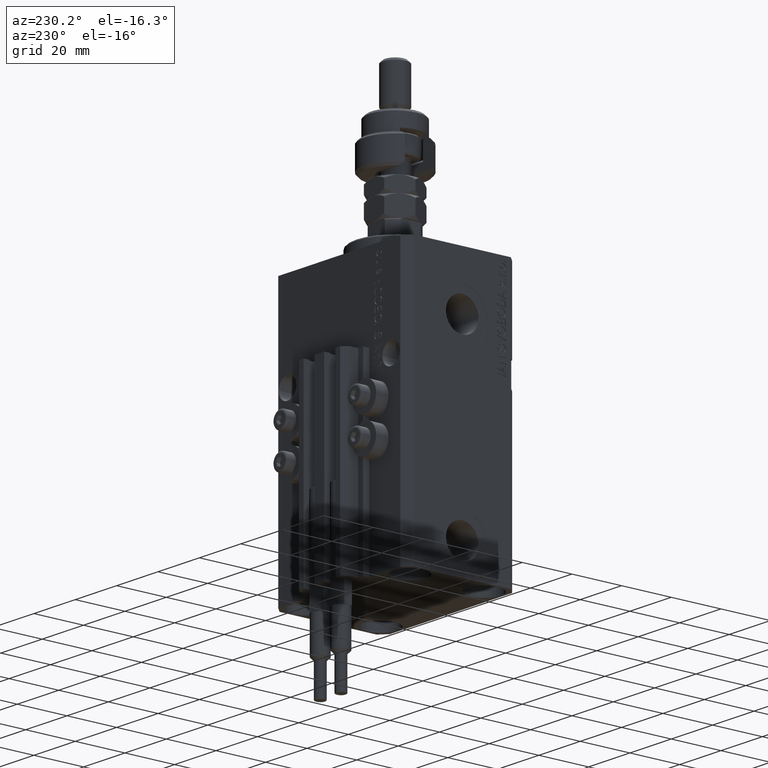
[diagram: clean part render]
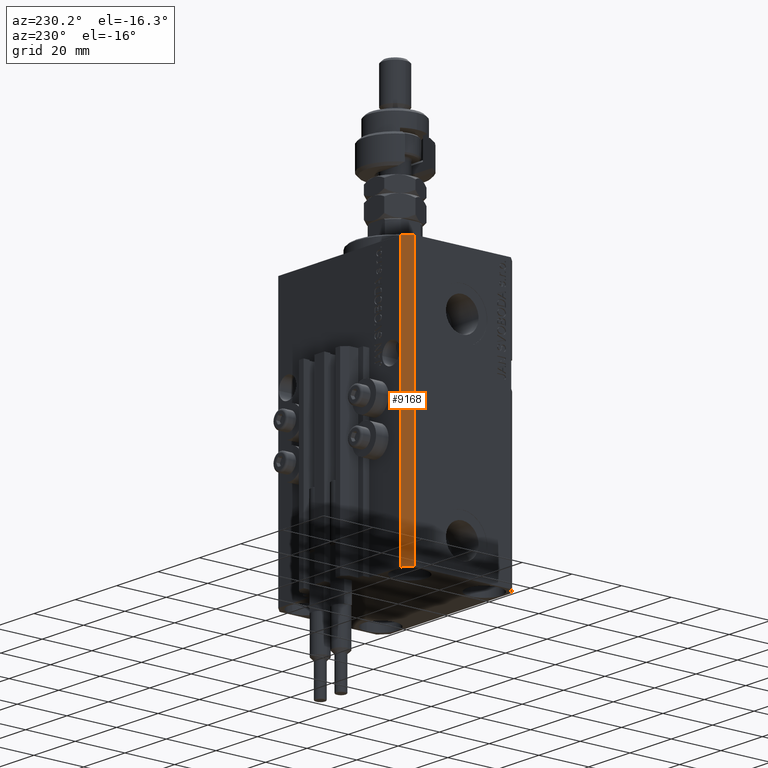
[diagram: same view with one face highlighted and labeled with its STEP entity id]
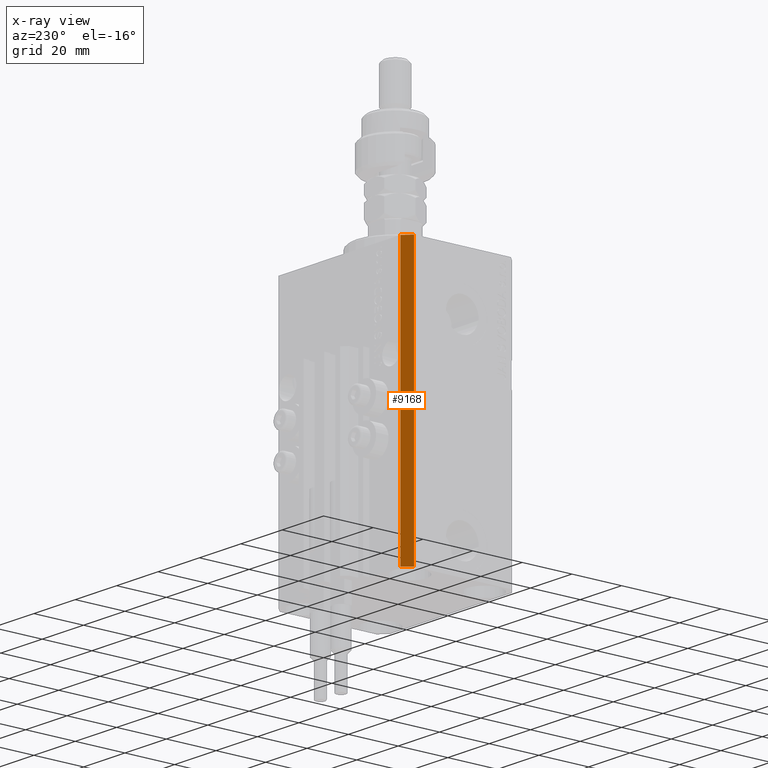
[diagram: x-ray of the same camera — body ghosted, the highlighted face saturated]
A machine part, auxiliary view. The second image highlights one B-rep face of the part: STEP entity #9168.
The next image is the same camera in x-ray: the body ghosted, the highlighted face saturated — about 0% of this face is hidden behind the body in this view.
In plain terms, the highlighted planar face has unit normal (-0.7071, 0.7071, 0).
Its self-contained STEP definition (entity closure, byte-faithful):
#80 = VERTEX_POINT ( 'NONE', #34087 ) ;
#2072 = VERTEX_POINT ( 'NONE', #35647 ) ;
#2098 = DIRECTION ( 'NONE',  ( 0.000000000000000000, 0.000000000000000000, 1.000000000000000000 ) ) ;
#5498 = CARTESIAN_POINT ( 'NONE',  ( -29.49999999999650413, 22.49999999999949907, -107.0000000000000000 ) ) ;
#9168 = ADVANCED_FACE ( 'NONE', ( #29975 ), #34328, .T. ) ;
#9396 = CARTESIAN_POINT ( 'NONE',  ( -32.49999999999650413, 19.49999999999949907, -107.0000000000000000 ) ) ;
#9629 = AXIS2_PLACEMENT_3D ( 'NONE', #18145, #41524, #49729 ) ;
#13047 = ORIENTED_EDGE ( 'NONE', *, *, #45311, .T. ) ;
#13943 = EDGE_CURVE ( 'NONE', #80, #14635, #16556, .T. ) ;
#14635 = VERTEX_POINT ( 'NONE', #9396 ) ;
#15903 = ORIENTED_EDGE ( 'NONE', *, *, #32828, .F. ) ;
#16556 = LINE ( 'NONE', #25047, #18852 ) ;
#16668 = ORIENTED_EDGE ( 'NONE', *, *, #44102, .F. ) ;
#18145 = CARTESIAN_POINT ( 'NONE',  ( -29.49999999999650413, 22.49999999999949907, -107.0000000000000000 ) ) ;
#18852 = VECTOR ( 'NONE', #29162, 1000.000000000000114 ) ;
#20407 = LINE ( 'NONE', #47133, #35051 ) ;
#25047 = CARTESIAN_POINT ( 'NONE',  ( -29.49999999999650413, 22.49999999999949907, -107.0000000000000000 ) ) ;
#26038 = VERTEX_POINT ( 'NONE', #26814 ) ;
#26814 = CARTESIAN_POINT ( 'NONE',  ( -29.49999999999650413, 22.49999999999949907, 0.000000000000000000 ) ) ;
#27628 = DIRECTION ( 'NONE',  ( -0.7071067811865474617, -0.7071067811865474617, 0.000000000000000000 ) ) ;
#28846 = CARTESIAN_POINT ( 'NONE',  ( -32.49999999999650413, 19.49999999999949907, -107.0000000000000000 ) ) ;
#29162 = DIRECTION ( 'NONE',  ( -0.7071067811865474617, -0.7071067811865474617, 0.000000000000000000 ) ) ;
#29975 = FACE_OUTER_BOUND ( 'NONE', #45802, .T. ) ;
#32054 = ORIENTED_EDGE ( 'NONE', *, *, #13943, .T. ) ;
#32828 = EDGE_CURVE ( 'NONE', #80, #26038, #47643, .T. ) ;
#34087 = CARTESIAN_POINT ( 'NONE',  ( -29.49999999999650413, 22.49999999999949907, -107.0000000000000000 ) ) ;
#34328 = PLANE ( 'NONE',  #9629 ) ;
#35051 = VECTOR ( 'NONE', #27628, 1000.000000000000114 ) ;
#35647 = CARTESIAN_POINT ( 'NONE',  ( -32.49999999999650413, 19.49999999999949907, 0.000000000000000000 ) ) ;
#36778 = VECTOR ( 'NONE', #2098, 1000.000000000000000 ) ;
#41156 = LINE ( 'NONE', #28846, #36778 ) ;
#41524 = DIRECTION ( 'NONE',  ( -0.7071067811865475727, 0.7071067811865475727, 0.000000000000000000 ) ) ;
#44102 = EDGE_CURVE ( 'NONE', #26038, #2072, #20407, .T. ) ;
#45311 = EDGE_CURVE ( 'NONE', #14635, #2072, #41156, .T. ) ;
#45802 = EDGE_LOOP ( 'NONE', ( #16668, #15903, #32054, #13047 ) ) ;
#47133 = CARTESIAN_POINT ( 'NONE',  ( -29.49999999999650413, 22.49999999999949907, 0.000000000000000000 ) ) ;
#47643 = LINE ( 'NONE', #5498, #49557 ) ;
#49162 = DIRECTION ( 'NONE',  ( 0.000000000000000000, 0.000000000000000000, 1.000000000000000000 ) ) ;
#49557 = VECTOR ( 'NONE', #49162, 1000.000000000000000 ) ;
#49729 = DIRECTION ( 'NONE',  ( -0.7071067811865474617, -0.7071067811865474617, 0.000000000000000000 ) ) ;